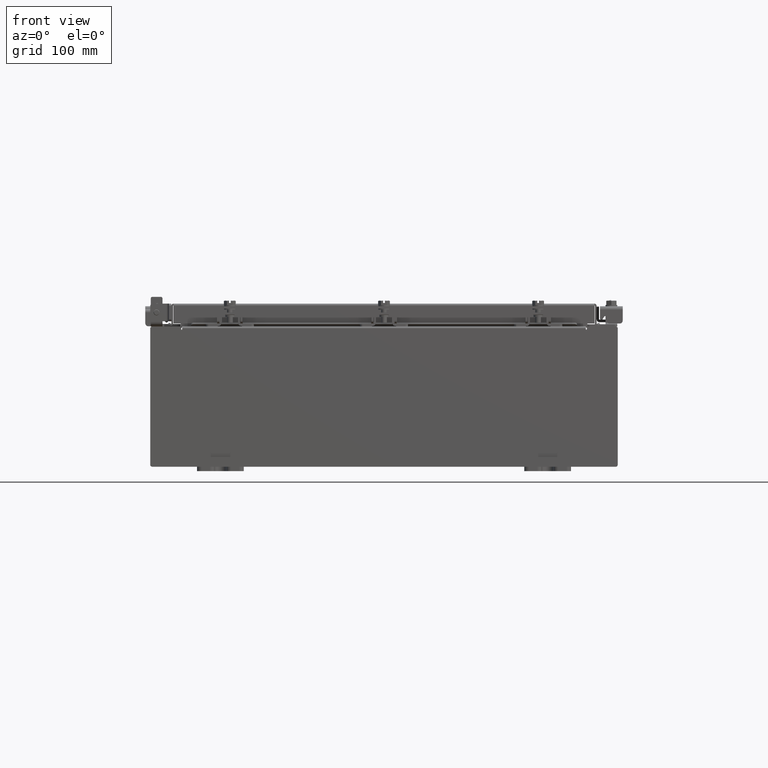
[diagram: clean part render]
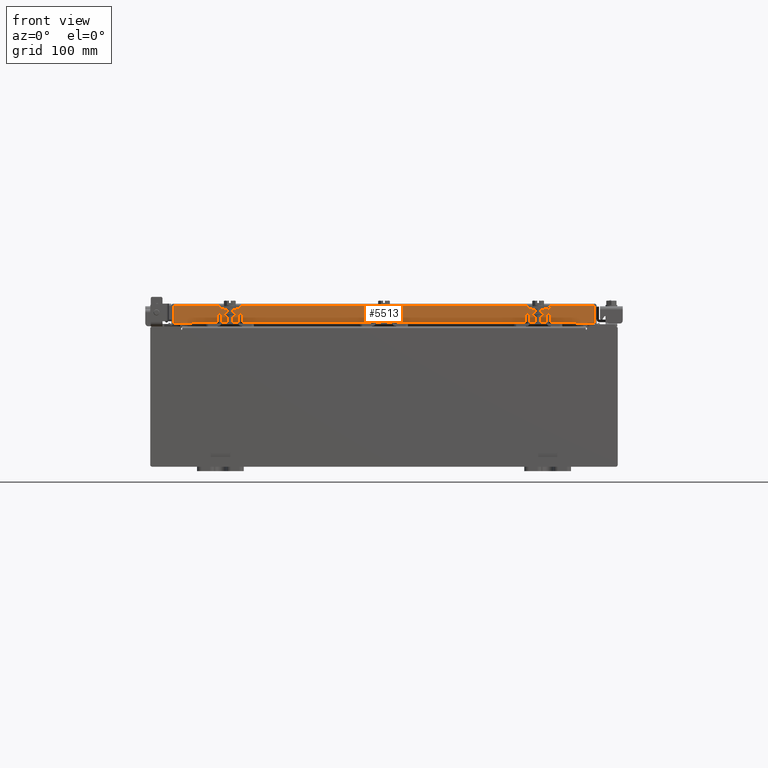
[diagram: same view with one face highlighted and labeled with its STEP entity id]
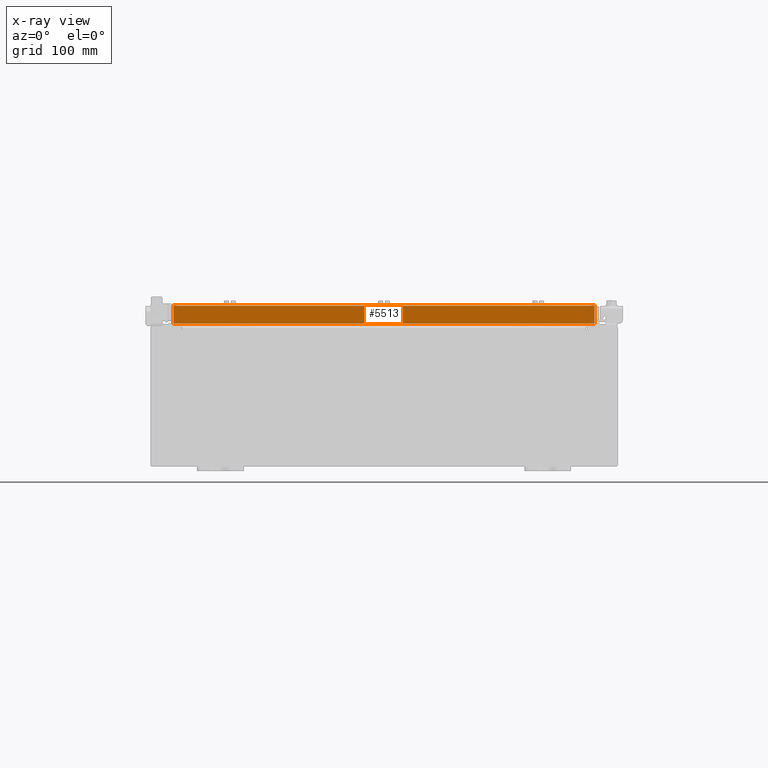
[diagram: x-ray of the same camera — body ghosted, the highlighted face saturated]
A machine part, front view. The second image highlights one B-rep face of the part: STEP entity #5513.
The next image is the same camera in x-ray: the body ghosted, the highlighted face saturated — about 0% of this face is hidden behind the body in this view.
In plain terms, the highlighted planar face has unit normal (-0, 1, -0).
Its self-contained STEP definition (entity closure, byte-faithful):
#99 = EDGE_CURVE ( 'NONE', #12997, #6461, #113, .T. ) ;
#113 = LINE ( 'NONE', #16131, #8881 ) ;
#1645 = ORIENTED_EDGE ( 'NONE', *, *, #15445, .F. ) ;
#2204 = ORIENTED_EDGE ( 'NONE', *, *, #99, .F. ) ;
#3047 = CARTESIAN_POINT ( 'NONE',  ( -9.005157864376267100, -9.093999999999999400, 2.622574073917692700E-014 ) ) ;
#3467 = ORIENTED_EDGE ( 'NONE', *, *, #8398, .T. ) ;
#4022 = AXIS2_PLACEMENT_3D ( 'NONE', #14215, #5567, #17711 ) ;
#4789 = CARTESIAN_POINT ( 'NONE',  ( 9.005157864376268900, -9.094000000000001200, -0.8499999999999999800 ) ) ;
#5513 = ADVANCED_FACE ( 'NONE', ( #17068 ), #19388, .F. ) ;
#5567 = DIRECTION ( 'NONE',  ( -3.387180227794633400E-031, 1.000000000000000000, -2.818880942772360100E-015 ) ) ;
#6126 = VERTEX_POINT ( 'NONE', #14032 ) ;
#6172 = VERTEX_POINT ( 'NONE', #17603 ) ;
#6461 = VERTEX_POINT ( 'NONE', #7084 ) ;
#6558 = DIRECTION ( 'NONE',  ( 0.0000000000000000000, -2.818880942772360100E-015, -1.000000000000000000 ) ) ;
#7084 = CARTESIAN_POINT ( 'NONE',  ( 8.255157864376267100, -9.094000000000001200, -0.8500000000000020900 ) ) ;
#7433 = VECTOR ( 'NONE', #8257, 39.37007874015748100 ) ;
#7983 = LINE ( 'NONE', #11675, #7433 ) ;
#8257 = DIRECTION ( 'NONE',  ( 1.000000000000000000, 3.387180227794633400E-031, -9.232666117091638000E-046 ) ) ;
#8398 = EDGE_CURVE ( 'NONE', #13834, #19920, #18936, .T. ) ;
#8598 = CARTESIAN_POINT ( 'NONE',  ( 8.255157864376267100, -9.094000000000001200, -0.8500000000000020900 ) ) ;
#8881 = VECTOR ( 'NONE', #14617, 39.37007874015748100 ) ;
#9050 = CARTESIAN_POINT ( 'NONE',  ( 9.005157864376268900, -9.093999999999999400, -0.07470000000000015500 ) ) ;
#9707 = VECTOR ( 'NONE', #6558, 39.37007874015748100 ) ;
#10136 = LINE ( 'NONE', #8598, #18829 ) ;
#10219 = LINE ( 'NONE', #21901, #18910 ) ;
#10317 = ORIENTED_EDGE ( 'NONE', *, *, #18475, .F. ) ;
#10347 = DIRECTION ( 'NONE',  ( -1.000000000000000000, 0.0000000000000000000, 0.0000000000000000000 ) ) ;
#10541 = ORIENTED_EDGE ( 'NONE', *, *, #11290, .F. ) ;
#10679 = CARTESIAN_POINT ( 'NONE',  ( -9.005157864376267100, -9.093999999999999400, -0.08770000000000026400 ) ) ;
#11290 = EDGE_CURVE ( 'NONE', #13834, #6172, #7983, .T. ) ;
#11675 = CARTESIAN_POINT ( 'NONE',  ( 9.094000000000001200, -9.093999999999999400, -0.08770000000000026400 ) ) ;
#12997 = VERTEX_POINT ( 'NONE', #4789 ) ;
#13834 = VERTEX_POINT ( 'NONE', #10679 ) ;
#14032 = CARTESIAN_POINT ( 'NONE',  ( -8.255157864376267100, -9.094000000000001200, -0.8500000000000020900 ) ) ;
#14105 = CARTESIAN_POINT ( 'NONE',  ( -9.005157864376267100, -9.094000000000001200, -0.8499999999999977600 ) ) ;
#14215 = CARTESIAN_POINT ( 'NONE',  ( 0.0000000000000000000, -9.093999999999999400, 2.622574073917692700E-014 ) ) ;
#14617 = DIRECTION ( 'NONE',  ( -1.000000000000000000, 4.379057701015054300E-047, 1.201604571657912400E-016 ) ) ;
#14661 = EDGE_CURVE ( 'NONE', #6172, #12997, #19521, .T. ) ;
#14884 = VECTOR ( 'NONE', #21254, 39.37007874015748100 ) ;
#15445 = EDGE_CURVE ( 'NONE', #6126, #19920, #10219, .T. ) ;
#16131 = CARTESIAN_POINT ( 'NONE',  ( 9.094000000000001200, -9.094000000000001200, -0.8499999999999999800 ) ) ;
#16681 = DIRECTION ( 'NONE',  ( -1.000000000000000000, 4.379057701015054300E-047, 1.201604571657912400E-016 ) ) ;
#17068 = FACE_OUTER_BOUND ( 'NONE', #19863, .T. ) ;
#17603 = CARTESIAN_POINT ( 'NONE',  ( 9.005157864376270600, -9.093999999999999400, -0.08770000000000026400 ) ) ;
#17711 = DIRECTION ( 'NONE',  ( 0.0000000000000000000, 2.818880942772360100E-015, 1.000000000000000000 ) ) ;
#18475 = EDGE_CURVE ( 'NONE', #6461, #6126, #10136, .T. ) ;
#18829 = VECTOR ( 'NONE', #10347, 39.37007874015748100 ) ;
#18910 = VECTOR ( 'NONE', #16681, 39.37007874015748100 ) ;
#18936 = LINE ( 'NONE', #3047, #9707 ) ;
#18973 = ORIENTED_EDGE ( 'NONE', *, *, #14661, .F. ) ;
#19388 = PLANE ( 'NONE',  #4022 ) ;
#19521 = LINE ( 'NONE', #9050, #14884 ) ;
#19863 = EDGE_LOOP ( 'NONE', ( #10541, #3467, #1645, #10317, #2204, #18973 ) ) ;
#19920 = VERTEX_POINT ( 'NONE', #14105 ) ;
#21254 = DIRECTION ( 'NONE',  ( -0.0000000000000000000, -2.818880942772360100E-015, -1.000000000000000000 ) ) ;
#21901 = CARTESIAN_POINT ( 'NONE',  ( 9.094000000000001200, -9.094000000000001200, -0.8499999999999999800 ) ) ;